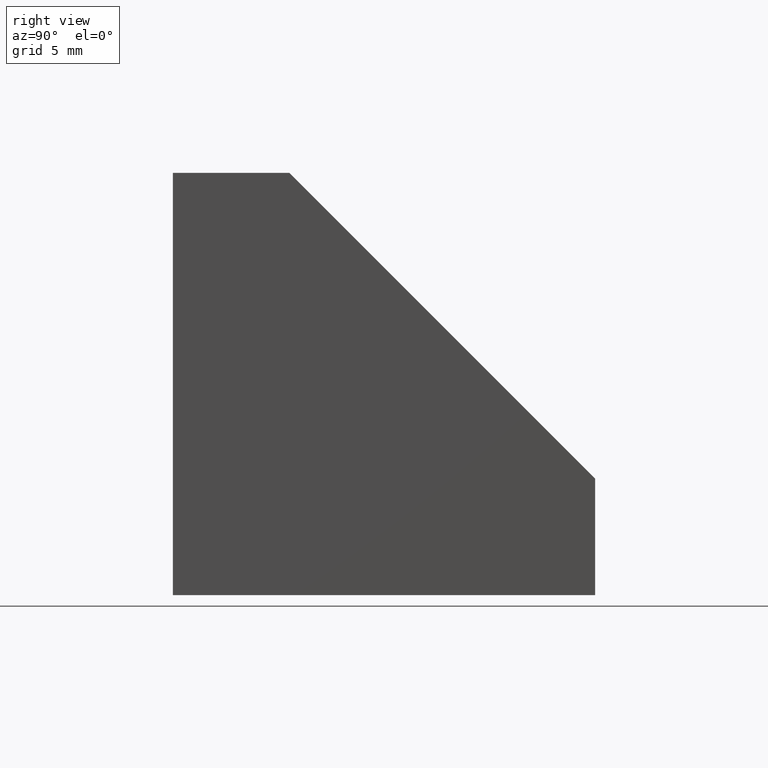
[diagram: clean part render]
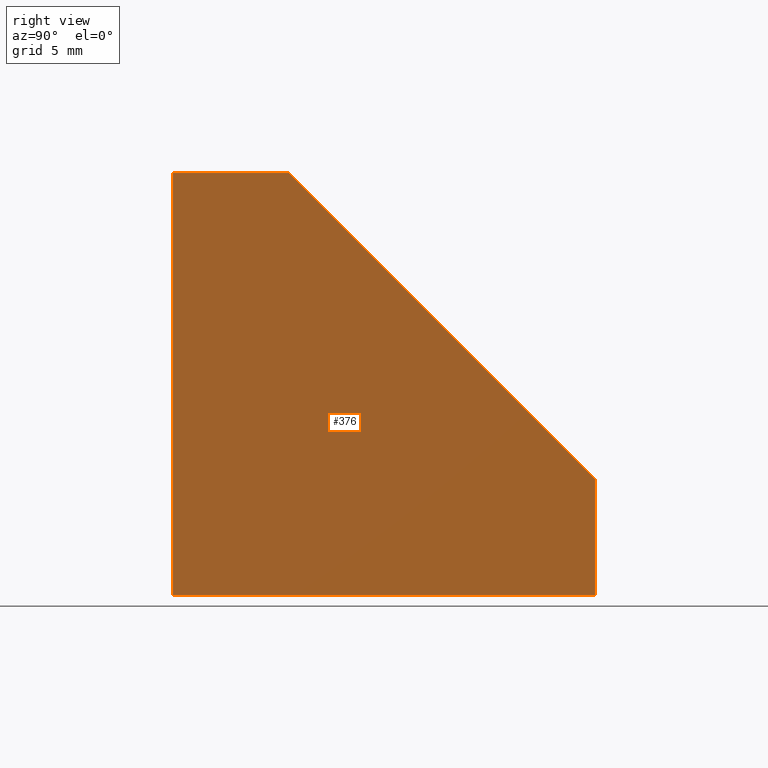
[diagram: same view with one face highlighted and labeled with its STEP entity id]
A machine part, right view. The second image highlights one B-rep face of the part: STEP entity #376.
In plain terms, the highlighted planar face has unit normal (1, 0, 0).
Its self-contained STEP definition (entity closure, byte-faithful):
#34=PLANE('',#406);
#54=FACE_OUTER_BOUND('',#78,.T.);
#78=EDGE_LOOP('',(#348,#349,#350,#351,#352));
#108=LINE('',#585,#150);
#112=LINE('',#592,#154);
#114=LINE('',#597,#156);
#117=LINE('',#603,#159);
#120=LINE('',#607,#162);
#150=VECTOR('',#482,29.698484809835);
#154=VECTOR('',#488,8.);
#156=VECTOR('',#492,8.);
#159=VECTOR('',#497,29.);
#162=VECTOR('',#502,29.);
#195=VERTEX_POINT('',#582);
#196=VERTEX_POINT('',#584);
#198=VERTEX_POINT('',#590);
#200=VERTEX_POINT('',#596);
#202=VERTEX_POINT('',#602);
#240=EDGE_CURVE('',#196,#195,#108,.T.);
#244=EDGE_CURVE('',#195,#198,#112,.T.);
#246=EDGE_CURVE('',#200,#196,#114,.T.);
#249=EDGE_CURVE('',#202,#200,#117,.T.);
#252=EDGE_CURVE('',#198,#202,#120,.T.);
#348=ORIENTED_EDGE('',*,*,#252,.T.);
#349=ORIENTED_EDGE('',*,*,#249,.T.);
#350=ORIENTED_EDGE('',*,*,#246,.T.);
#351=ORIENTED_EDGE('',*,*,#240,.T.);
#352=ORIENTED_EDGE('',*,*,#244,.T.);
#376=ADVANCED_FACE('',(#54),#34,.T.);
#406=AXIS2_PLACEMENT_3D('',#609,#505,#506);
#482=DIRECTION('',(0.,-0.707106781186547,0.707106781186547));
#488=DIRECTION('',(0.,-1.,0.));
#492=DIRECTION('',(0.,0.,1.));
#497=DIRECTION('',(0.,1.,6.12323399573676E-17));
#502=DIRECTION('',(0.,0.,-1.));
#505=DIRECTION('center_axis',(1.,0.,0.));
#506=DIRECTION('ref_axis',(0.,0.,-1.));
#582=CARTESIAN_POINT('',(29.,8.,29.));
#584=CARTESIAN_POINT('',(29.,29.,8.));
#585=CARTESIAN_POINT('',(29.,8.,29.));
#590=CARTESIAN_POINT('',(29.,0.,29.));
#592=CARTESIAN_POINT('',(29.,0.,29.));
#596=CARTESIAN_POINT('',(29.,29.,1.77573785876366E-15));
#597=CARTESIAN_POINT('',(29.,29.,8.));
#602=CARTESIAN_POINT('',(29.,0.,0.));
#603=CARTESIAN_POINT('',(29.,29.,1.77573785876366E-15));
#607=CARTESIAN_POINT('',(29.,0.,0.));
#609=CARTESIAN_POINT('Origin',(29.,11.8991320967201,11.8991320967201));